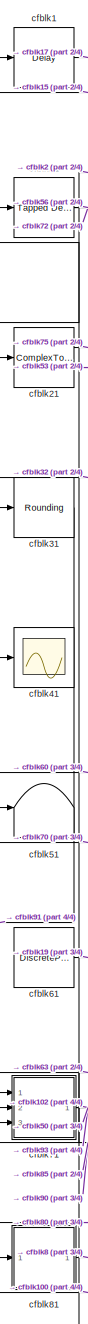
[diagram: root canvas - part 1/4, left side, full height]
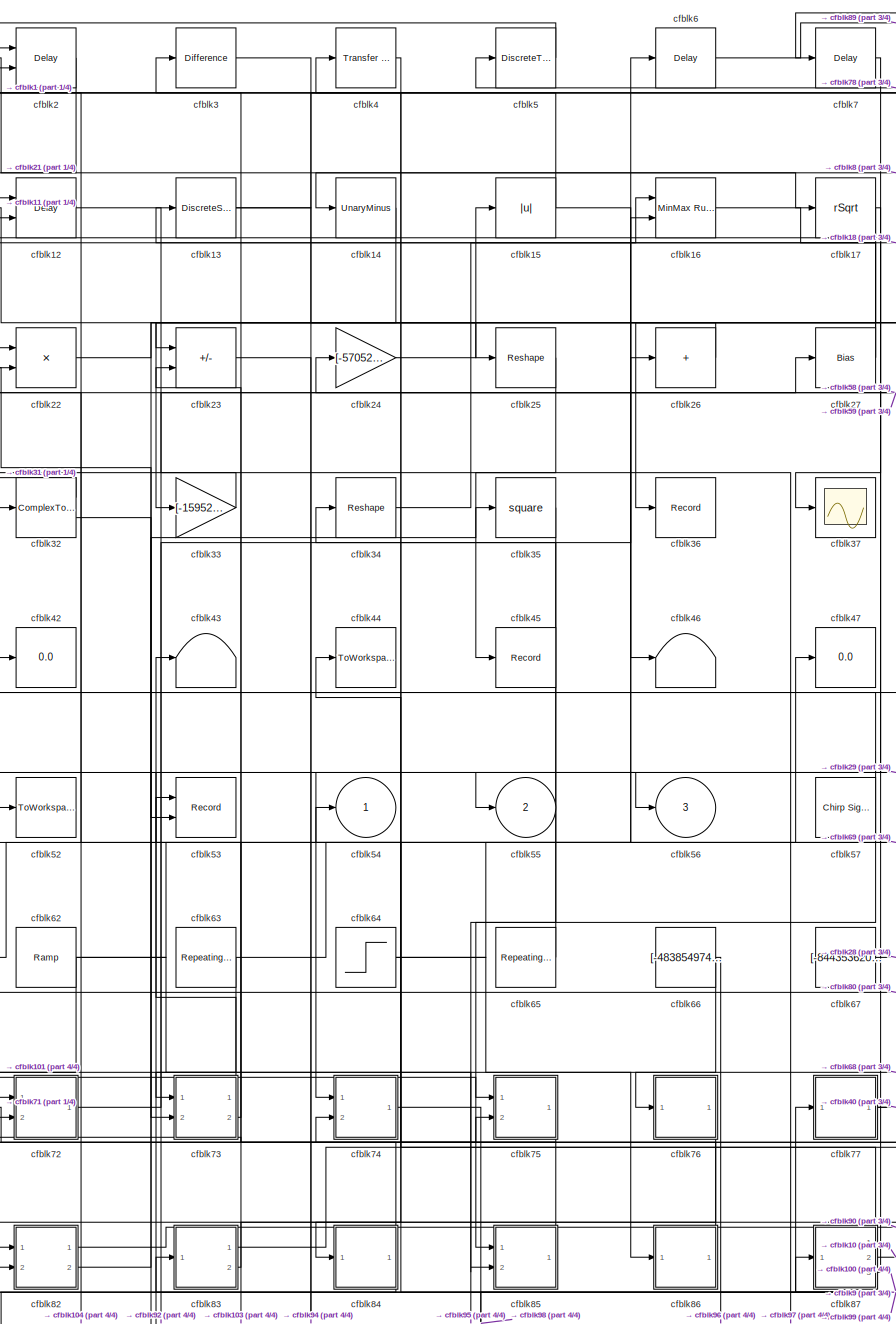
[diagram: root canvas - part 2/4, center side, full height]
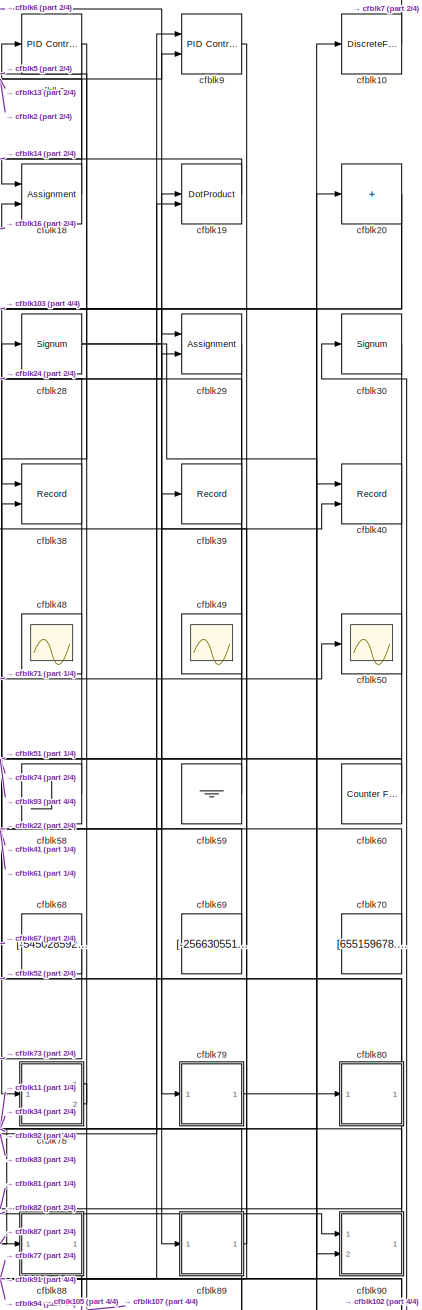
[diagram: root canvas - part 3/4, right side, full height]
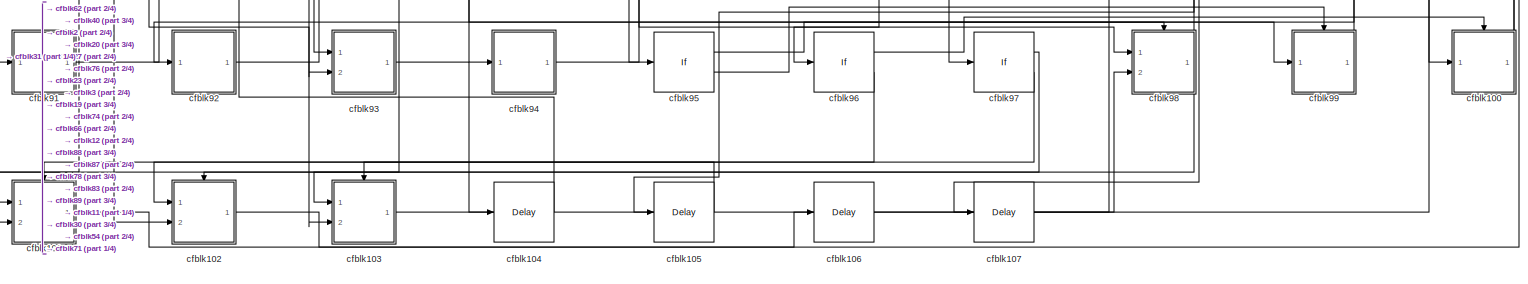
[diagram: root canvas - part 4/4, full width, bottom band]
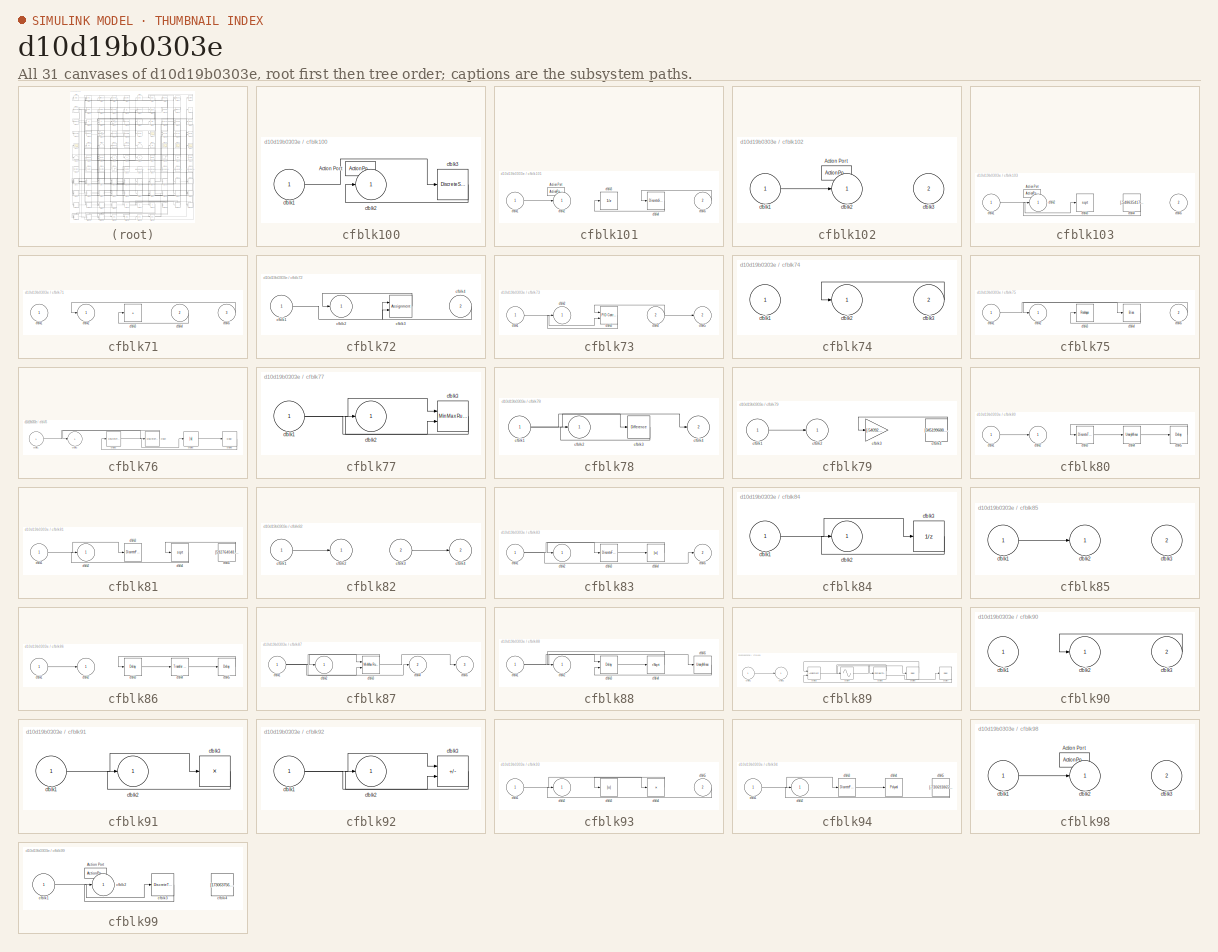
[diagram: thumbnail index - all 31 canvases of the model, root first then tree order]
MODEL slx_d10d19b0303e
KIND model
CONFIG AbsTol = auto
CONFIG EnableMultiTasking = off
CONFIG FixedStep = auto
CONFIG MaxStep = auto
CONFIG MinStep = auto
CONFIG RelTol = 1e-3
CONFIG SampleTimeConstraint = Unconstrained
CONFIG SolverName = VariableStepAuto
CONFIG StartTime = 0.0
CONFIG StopTime = 10.0
BLOCK [Delay] cfblk1
  InputPortMap = u0
  Ports = [1, 1]
  SampleTime = 1
BLOCK [DiscreteFilter] cfblk10
  InputPortMap = u0
  Ports = [1, 1]
  SampleTime = 1
BLOCK [SubSystem] cfblk100
  Ports = [1, 1, 0, 0, 0, 0, 0, 1]
  RequestExecContextInheritance = off
  TreatAsAtomicUnit = on
BLOCK [ActionPort] cfblk100/Action Port
  ActionPortLabel = if(u1 >= 0)
BLOCK [Inport] cfblk100/cfblk1
BLOCK [Outport] cfblk100/cfblk2
BLOCK [DiscreteStateSpace] cfblk100/cfblk3
  SampleTime = -1
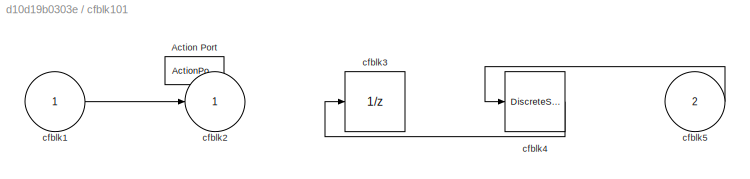
BLOCK [SubSystem] cfblk101
  Ports = [2, 1, 0, 0, 0, 0, 0, 1]
  RequestExecContextInheritance = off
  TreatAsAtomicUnit = on
BLOCK [ActionPort] cfblk101/Action Port
  ActionPortLabel = else
BLOCK [Inport] cfblk101/cfblk1
BLOCK [Outport] cfblk101/cfblk2
BLOCK [UnitDelay] cfblk101/cfblk3
  HasFrameUpgradeWarning = on
  SampleTime = -1
BLOCK [DiscreteStateSpace] cfblk101/cfblk4
  SampleTime = -1
BLOCK [Inport] cfblk101/cfblk5
  Port = 2
BLOCK [SubSystem] cfblk102
  Ports = [2, 1, 0, 0, 0, 0, 0, 1]
  RequestExecContextInheritance = off
  TreatAsAtomicUnit = on
BLOCK [ActionPort] cfblk102/Action Port
  ActionPortLabel = if(u1 >= 0)
BLOCK [Inport] cfblk102/cfblk1
BLOCK [Outport] cfblk102/cfblk2
BLOCK [Inport] cfblk102/cfblk3
  Port = 2
BLOCK [SubSystem] cfblk103
  Ports = [2, 1, 0, 0, 0, 0, 0, 1]
  RequestExecContextInheritance = off
  TreatAsAtomicUnit = on
BLOCK [ActionPort] cfblk103/Action Port
  ActionPortLabel = else
BLOCK [Inport] cfblk103/cfblk1
BLOCK [Outport] cfblk103/cfblk2
BLOCK [Sqrt] cfblk103/cfblk3
BLOCK [Constant] cfblk103/cfblk4
  SampleTime = 1
  Value = [-548635417.540309]
BLOCK [Inport] cfblk103/cfblk5
  Port = 2
BLOCK [Delay] cfblk104
  InputPortMap = u0
  Ports = [1, 1]
  SampleTime = 1
BLOCK [Delay] cfblk105
  InputPortMap = u0
  Ports = [1, 1]
  SampleTime = 1
BLOCK [Delay] cfblk106
  InputPortMap = u0
  Ports = [1, 1]
  SampleTime = 1
BLOCK [Delay] cfblk107
  InputPortMap = u0
  Ports = [1, 1]
  SampleTime = 1
BLOCK [Reference] cfblk11  REF=simulink/Discrete/Tapped Delay
  Ports = [1, 1]
  SourceBlock = simulink/Discrete/Tapped Delay
  SourceProductBaseCode = SL
  SourceType = Tapped Delay Line
BLOCK [Delay] cfblk12
  InputPortMap = u0,e6
  Ports = [2, 1]
  SampleTime = 1
  ShowEnablePort = on
BLOCK [DiscreteStateSpace] cfblk13
BLOCK [UnaryMinus] cfblk14
BLOCK [Abs] cfblk15
  SaturateOnIntegerOverflow = off
BLOCK [Reference] cfblk16  REF=simulink/Math
Operations/MinMax
Running
Resettable
  Ports = [2, 1]
  SourceBlock = simulink/Math\nOperations/MinMax\nRunning\nResettable
  SourceProductBaseCode = SL
  SourceType = MinMax Running Resettable
BLOCK [Sqrt] cfblk17
  AlgorithmType = Newton-Raphson
  Operator = rSqrt
BLOCK [Assignment] cfblk18
  DiagnosticForDimensions = Warning
  IndexOptions = Index vector (dialog)
  Indices = 1
  OutputSizes = 1
  Ports = [2, 1]
BLOCK [DotProduct] cfblk19
  OutDataTypeStr = Inherit: Inherit via internal rule
BLOCK [Delay] cfblk2
  DelayLengthSource = Input port
  InputPortMap = u0,p1
  Ports = [2, 1]
  SampleTime = 1
BLOCK [Sum] cfblk20
  IconShape = rectangular
  Inputs = +
  Ports = [1, 1]
BLOCK [ComplexToMagnitudeAngle] cfblk21
  Ports = [1, 2]
BLOCK [Product] cfblk22
  Inputs = **
  Ports = [2, 1]
BLOCK [Sum] cfblk23
  IconShape = rectangular
  Inputs = -+
  Ports = [2, 1]
BLOCK [Gain] cfblk24
  Gain = [-570527661.174299]
BLOCK [Reshape] cfblk25
  Ports = [1, 1]
BLOCK [Sum] cfblk26
  IconShape = rectangular
  Inputs = +
  Ports = [1, 1]
BLOCK [Bias] cfblk27
  Bias = [639925905.355935]
  SaturateOnIntegerOverflow = off
BLOCK [Signum] cfblk28
BLOCK [Assignment] cfblk29
  DiagnosticForDimensions = Warning
  IndexOptions = Index vector (dialog)
  Indices = 1
  OutputSizes = 1
  Ports = [2, 1]
BLOCK [Reference] cfblk3  REF=simulink/Discrete/Difference
  Ports = [1, 1]
  SourceBlock = simulink/Discrete/Difference
  SourceProductBaseCode = SL
  SourceType = Difference
BLOCK [Signum] cfblk30
BLOCK [Rounding] cfblk31
BLOCK [ComplexToRealImag] cfblk32
  Ports = [1, 2]
BLOCK [Gain] cfblk33
  Gain = [-159525639.619426]
BLOCK [Reshape] cfblk34
  Ports = [1, 1]
BLOCK [Math] cfblk35
  Operator = square
  Ports = [1, 1]
BLOCK [Record] cfblk36
  FileSettingsInternal = {"entries":[{"content":{"excelSettings":{"content":{},"type":"Streamout.ExcelSettings"}},"type":"Streamout.FileSettingStorage","uuid":"c781cdf7-8340-408b-8422-f8d69e560093"}],"packageUris":["http://schema.mathworks.com/mf0/streamout_blocks/R2020a"],"version":"1.0"}
  Ports = [1]
  SignalsInternal = {"entries":[{"content":{"signals":[{"content":{"blockPath":["sampleModel281/cfblk36"],"channel":[],"dimensions":[1],"domain":"sampleModel281/cfblk36","lineColor":"#139fff","plots":[1],"port":1,"sid":[""],"signalID":11991,"signalName":"cfblk17"},"type":"RecordBlkView.Signal","uuid":"6f29a3cb-49ad-40a3-998c-ead64aca4211"}]},"type":"RecordBlkView.InputSignals","uuid":"da20b184-1727-445b-b2e6-5f57a622...<+98ch>
  VisualizationBindings = {"sparklinesplugin":{"info":[{"bindingParametersList":[],"subplotID":1}]}}
BLOCK [Scope] cfblk37
  Floating = off
  NumInputPorts = 1
  Ports = [1]
BLOCK [Record] cfblk38
  CompatibilityTag = XY
  FileSettingsInternal = {"entries":[{"content":{"excelSettings":{"content":{},"type":"Streamout.ExcelSettings"}},"type":"Streamout.FileSettingStorage","uuid":"4188593c-7763-4c79-a663-ea53f92952dd"}],"packageUris":["http://schema.mathworks.com/mf0/streamout_blocks/R2020a"],"version":"1.0"}
  Layout = [1 1]
  Ports = [2]
  SignalsInternal = {"entries":[{"content":{"signals":[{"content":{"blockPath":["sampleModel281/cfblk38"],"channel":[],"dimensions":[1],"domain":"sampleModel281/cfblk38","lineColor":"#a2142f","plots":[1],"port":1,"sid":[""],"signalID":11963,"signalName":"cfblk8"},"type":"RecordBlkView.Signal","uuid":"ce15c6e9-b25a-4a9d-a87d-16814ede9b87"},{"content":{"blockPath":["sampleModel281/cfblk38"],"channel":[],"dimensions":[1...<+384ch>
  VisualizationBindings = {"xyplotplugin":{"info":[{"series":[{"bindingParametersList":[{"parameter":"X-Axis","signalID":11963,"signalName":"cfblk8"},{"parameter":"Y-Axis","signalID":11967,"signalName":"cfblk80"}],"seriesID":6983}],"subplotID":1}]}}
BLOCK [Record] cfblk39
  FileSettingsInternal = {"entries":[{"content":{"excelSettings":{"content":{},"type":"Streamout.ExcelSettings"}},"type":"Streamout.FileSettingStorage","uuid":"219db649-d65c-4cc3-812d-aced4d92e676"}],"packageUris":["http://schema.mathworks.com/mf0/streamout_blocks/R2020a"],"version":"1.0"}
  Ports = [1]
  SignalsInternal = {"entries":[{"content":{"signals":[{"content":{"blockPath":["sampleModel281/cfblk39"],"channel":[],"dimensions":[1],"domain":"sampleModel281/cfblk39","lineColor":"#edb120","plots":[1],"port":1,"sid":[""],"signalID":11971,"signalName":"cfblk89"},"type":"RecordBlkView.Signal","uuid":"55bd96a2-e860-4ecd-af7d-bb83553d0170"}]},"type":"RecordBlkView.InputSignals","uuid":"8836e843-c683-4200-9918-d583b116...<+98ch>
  VisualizationBindings = {"sparklinesplugin":{"info":[{"bindingParametersList":[],"subplotID":1}]}}
BLOCK [Reference] cfblk4  REF=simulink/Discrete/Transfer Fcn
Lead or Lag
  Ports = [1, 1]
  SourceBlock = simulink/Discrete/Transfer Fcn\nLead or Lag
  SourceProductBaseCode = SL
  SourceType = Lead or Lag Compensator
BLOCK [Record] cfblk40
  CompatibilityTag = XY
  FileSettingsInternal = {"entries":[{"content":{"excelSettings":{"content":{},"type":"Streamout.ExcelSettings"}},"type":"Streamout.FileSettingStorage","uuid":"7e2a92c3-6fd6-43f3-bb8d-8e942b6776ba"}],"packageUris":["http://schema.mathworks.com/mf0/streamout_blocks/R2020a"],"version":"1.0"}
  Layout = [1 1]
  Ports = [2]
  SignalsInternal = {"entries":[{"content":{"signals":[{"content":{"blockPath":["sampleModel281/cfblk40"],"channel":[],"dimensions":[1],"domain":"sampleModel281/cfblk40","lineColor":"#a2142f","plots":[1],"port":1,"sid":[""],"signalID":11975,"signalName":"cfblk91"},"type":"RecordBlkView.Signal","uuid":"8dd85c33-c0e1-47fe-82f9-e8373d55203a"},{"content":{"blockPath":["sampleModel281/cfblk40"],"channel":[],"dimensions":[...<+385ch>
  VisualizationBindings = {"xyplotplugin":{"info":[{"series":[{"bindingParametersList":[{"parameter":"X-Axis","signalID":11975,"signalName":"cfblk91"},{"parameter":"Y-Axis","signalID":11979,"signalName":"cfblk77"}],"seriesID":59243}],"subplotID":1}]}}
BLOCK [Scope] cfblk41
  Floating = off
  NumInputPorts = 1
  Ports = [1]
BLOCK [Display] cfblk42
  Decimation = 1
  Ports = [1]
BLOCK [Terminator] cfblk43
BLOCK [ToWorkspace] cfblk44
  FixptAsFi = on
  MaxDataPoints = inf
  Ports = [1]
  SampleTime = -1
  SaveFormat = Timeseries
  VariableName = hrtlfxt
BLOCK [Record] cfblk45
  FileSettingsInternal = {"entries":[{"content":{"excelSettings":{"content":{},"type":"Streamout.ExcelSettings"}},"type":"Streamout.FileSettingStorage","uuid":"80b63704-7d10-486e-b387-18bfb6728c18"}],"packageUris":["http://schema.mathworks.com/mf0/streamout_blocks/R2020a"],"version":"1.0"}
  Ports = [1]
  SignalsInternal = {"entries":[{"content":{"signals":[{"content":{"blockPath":["sampleModel281/cfblk45"],"channel":[],"dimensions":[1],"domain":"sampleModel281/cfblk45","lineColor":"#ff6929","plots":[1],"port":1,"sid":[""],"signalID":11995,"signalName":"cfblk25"},"type":"RecordBlkView.Signal","uuid":"f8ece178-e086-4969-b784-ed276f630d12"}]},"type":"RecordBlkView.InputSignals","uuid":"7be7d227-b162-4c4c-ad33-f79b945d...<+98ch>
  VisualizationBindings = {"sparklinesplugin":{"info":[{"bindingParametersList":[],"subplotID":1}]}}
BLOCK [Terminator] cfblk46
BLOCK [Display] cfblk47
  Decimation = 1
  Ports = [1]
BLOCK [Scope] cfblk48
  Floating = on
  NumInputPorts = 1
  Ports = []
BLOCK [Scope] cfblk49
  Floating = on
  NumInputPorts = 1
  Ports = []
BLOCK [DiscreteTransferFcn] cfblk5
  InputPortMap = u0
  Ports = [1, 1]
  SampleTime = 1
BLOCK [Scope] cfblk50
  Floating = off
  NumInputPorts = 1
  Ports = [1]
BLOCK [Terminator] cfblk51
BLOCK [ToWorkspace] cfblk52
  FixptAsFi = on
  MaxDataPoints = inf
  Ports = [1]
  SampleTime = -1
  SaveFormat = Timeseries
  VariableName = qgnmijv
BLOCK [Record] cfblk53
  CompatibilityTag = XY
  FileSettingsInternal = {"entries":[{"content":{"excelSettings":{"content":{},"type":"Streamout.ExcelSettings"}},"type":"Streamout.FileSettingStorage","uuid":"979e6c69-9637-4301-9808-cdf47ec4f26d"}],"packageUris":["http://schema.mathworks.com/mf0/streamout_blocks/R2020a"],"version":"1.0"}
  Layout = [1 1]
  Ports = [2]
  SignalsInternal = {"entries":[{"content":{"signals":[{"content":{"blockPath":["sampleModel281/cfblk53"],"channel":[],"dimensions":[1],"domain":"sampleModel281/cfblk53","lineColor":"#a2142f","plots":[1],"port":1,"sid":[""],"signalID":11983,"signalName":"cfblk86"},"type":"RecordBlkView.Signal","uuid":"a6416475-d9fb-464a-9363-37660f0059bb"},{"content":{"blockPath":["sampleModel281/cfblk53"],"channel":[],"dimensions":[...<+387ch>
  VisualizationBindings = {"xyplotplugin":{"info":[{"series":[{"bindingParametersList":[{"parameter":"X-Axis","signalID":11983,"signalName":"cfblk86"},{"parameter":"Y-Axis","signalID":11987,"signalName":"cfblk21:2"}],"seriesID":45068}],"subplotID":1}]}}
BLOCK [Outport] cfblk54
BLOCK [Outport] cfblk55
  Port = 2
BLOCK [Outport] cfblk56
  Port = 3
BLOCK [Reference] cfblk57  REF=simulink/Sources/Chirp Signal
  Ports = [0, 1]
  SourceBlock = simulink/Sources/Chirp Signal
  SourceProductBaseCode = SL
  SourceType = chirp
BLOCK [Step] cfblk58
  After = [840646586.279118]
  Before = [-159427746.311310]
  SampleTime = 0
  Time = [42.000000]
BLOCK [Ground] cfblk59
BLOCK [Delay] cfblk6
  InputPortMap = u0
  Ports = [1, 1]
  SampleTime = 1
BLOCK [Reference] cfblk60  REF=simulink/Sources/Counter
Free-Running
  Ports = [0, 1]
  SourceBlock = simulink/Sources/Counter\nFree-Running
  SourceProductBaseCode = SL
  SourceType = Counter Free-Running
BLOCK [DiscretePulseGenerator] cfblk61
  Amplitude = [-599555559.374941]
  Period = [82024512.109082]
  PhaseDelay = [9.000000]
  Ports = [0, 1]
  PulseType = Time based
  PulseWidth = 5
BLOCK [Reference] cfblk62  REF=simulink/Sources/Ramp
  Ports = [0, 1]
  SourceBlock = simulink/Sources/Ramp
  SourceProductBaseCode = SL
  SourceType = Ramp
BLOCK [Reference] cfblk63  REF=simulink/Sources/Repeating
Sequence
Interpolated
  Ports = [0, 1]
  SourceBlock = simulink/Sources/Repeating\nSequence\nInterpolated
  SourceProductBaseCode = SL
  SourceType = Repeating Sequence Interpolated
BLOCK [Step] cfblk64
  After = [306635443.375634]
  Before = [-566169938.934532]
  SampleTime = 0
  Time = [34.000000]
BLOCK [Reference] cfblk65  REF=simulink/Sources/Repeating
Sequence
Stair
  Ports = [0, 1]
  SourceBlock = simulink/Sources/Repeating\nSequence\nStair
  SourceProductBaseCode = SL
  SourceType = Repeating Sequence Stair
BLOCK [Constant] cfblk66
  SampleTime = 1
  Value = [-483854974.135673]
BLOCK [Constant] cfblk67
  SampleTime = 1
  Value = [-844353620.196020]
BLOCK [Constant] cfblk68
  SampleTime = 1
  Value = [-545028592.398098]
BLOCK [Constant] cfblk69
  SampleTime = 1
  Value = [-256630551.572373]
BLOCK [Delay] cfblk7
  InputPortMap = u0
  Ports = [1, 1]
  SampleTime = 1
BLOCK [Constant] cfblk70
  SampleTime = 1
  Value = [655159678.286842]
BLOCK [SubSystem] cfblk71
  Ports = [3, 1]
  RequestExecContextInheritance = off
BLOCK [Inport] cfblk71/cfblk1
BLOCK [Outport] cfblk71/cfblk2
BLOCK [Sum] cfblk71/cfblk3
  IconShape = rectangular
  Inputs = +
  Ports = [1, 1]
BLOCK [Inport] cfblk71/cfblk4
  Port = 2
BLOCK [Inport] cfblk71/cfblk5
  Port = 3
BLOCK [SubSystem] cfblk72
  Ports = [2, 1]
  RequestExecContextInheritance = off
BLOCK [Inport] cfblk72/cfblk1
BLOCK [Outport] cfblk72/cfblk2
BLOCK [Assignment] cfblk72/cfblk3
  DiagnosticForDimensions = Warning
  IndexOptions = Index vector (dialog)
  Indices = 1
  OutputSizes = 1
  Ports = [2, 1]
BLOCK [Inport] cfblk72/cfblk4
  Port = 2
BLOCK [SubSystem] cfblk73
  Ports = [2, 2]
  RequestExecContextInheritance = off
BLOCK [Inport] cfblk73/cfblk1
BLOCK [Outport] cfblk73/cfblk2
BLOCK [Reference] cfblk73/cfblk3  REF=slpidlib/PID Controller (2DOF)
  Ports = [2, 1]
  SourceBlock = slpidlib/PID Controller (2DOF)
  SourceProductBaseCode = SL
  SourceType = PID 2dof
BLOCK [Inport] cfblk73/cfblk4
  Port = 2
BLOCK [Outport] cfblk73/cfblk5
  Port = 2
BLOCK [SubSystem] cfblk74
  Ports = [2, 1]
  RequestExecContextInheritance = off
BLOCK [Inport] cfblk74/cfblk1
BLOCK [Outport] cfblk74/cfblk2
BLOCK [Inport] cfblk74/cfblk3
  Port = 2
BLOCK [SubSystem] cfblk75
  Ports = [2, 1]
  RequestExecContextInheritance = off
BLOCK [Inport] cfblk75/cfblk1
BLOCK [Outport] cfblk75/cfblk2
BLOCK [Reshape] cfblk75/cfblk3
  Ports = [1, 1]
BLOCK [Bias] cfblk75/cfblk4
  Bias = [-374464078.550922]
  SaturateOnIntegerOverflow = off
BLOCK [Inport] cfblk75/cfblk5
  Port = 2
BLOCK [SubSystem] cfblk76
  Ports = [1, 1]
  RequestExecContextInheritance = off
BLOCK [Inport] cfblk76/cfblk1
BLOCK [Outport] cfblk76/cfblk2
BLOCK [DiscreteTransferFcn] cfblk76/cfblk3
  InputPortMap = u0
  Ports = [1, 1]
  SampleTime = 1
BLOCK [DiscreteFilter] cfblk76/cfblk4
  InputPortMap = u0
  Ports = [1, 1]
  SampleTime = 1
BLOCK [Abs] cfblk76/cfblk5
  SaturateOnIntegerOverflow = off
BLOCK [Delay] cfblk76/cfblk6
  InputPortMap = u0
  Ports = [1, 1]
  SampleTime = 1
BLOCK [SubSystem] cfblk77
  Ports = [1, 1]
  RequestExecContextInheritance = off
BLOCK [Inport] cfblk77/cfblk1
BLOCK [Outport] cfblk77/cfblk2
BLOCK [Reference] cfblk77/cfblk3  REF=simulink/Math
Operations/MinMax
Running
Resettable
  Ports = [2, 1]
  SourceBlock = simulink/Math\nOperations/MinMax\nRunning\nResettable
  SourceProductBaseCode = SL
  SourceType = MinMax Running Resettable
BLOCK [SubSystem] cfblk78
  Ports = [1, 2]
  RequestExecContextInheritance = off
BLOCK [Inport] cfblk78/cfblk1
BLOCK [Outport] cfblk78/cfblk2
BLOCK [Reference] cfblk78/cfblk3  REF=simulink/Discrete/Difference
  Ports = [1, 1]
  SourceBlock = simulink/Discrete/Difference
  SourceProductBaseCode = SL
  SourceType = Difference
BLOCK [Outport] cfblk78/cfblk4
  Port = 2
BLOCK [SubSystem] cfblk79
  Ports = [1, 1]
  RequestExecContextInheritance = off
BLOCK [Inport] cfblk79/cfblk1
BLOCK [Outport] cfblk79/cfblk2
BLOCK [Gain] cfblk79/cfblk3
  Gain = [-540929469.649708]
BLOCK [Constant] cfblk79/cfblk4
  SampleTime = 1
  Value = [345199688.545486]
BLOCK [Reference] cfblk8  REF=slpidlib/PID Controller
  Ports = [1, 1]
  SourceBlock = slpidlib/PID Controller
  SourceProductBaseCode = SL
  SourceType = PID 1dof
BLOCK [SubSystem] cfblk80
  Ports = [1, 1]
  RequestExecContextInheritance = off
BLOCK [Inport] cfblk80/cfblk1
BLOCK [Outport] cfblk80/cfblk2
BLOCK [DiscreteTransferFcn] cfblk80/cfblk3
  InputPortMap = u0
  Ports = [1, 1]
  SampleTime = 1
BLOCK [UnaryMinus] cfblk80/cfblk4
BLOCK [Delay] cfblk80/cfblk5
  InputPortMap = u0
  Ports = [1, 1]
  SampleTime = 1
BLOCK [SubSystem] cfblk81
  Ports = [1, 1]
  RequestExecContextInheritance = off
BLOCK [Inport] cfblk81/cfblk1
BLOCK [Outport] cfblk81/cfblk2
BLOCK [DiscreteFilter] cfblk81/cfblk3
  InputPortMap = u0
  Ports = [1, 1]
  SampleTime = 1
BLOCK [Sqrt] cfblk81/cfblk4
BLOCK [Constant] cfblk81/cfblk5
  SampleTime = 1
  Value = [592764048.259146]
BLOCK [SubSystem] cfblk82
  Ports = [2, 2]
  RequestExecContextInheritance = off
BLOCK [Inport] cfblk82/cfblk1
BLOCK [Outport] cfblk82/cfblk2
BLOCK [Inport] cfblk82/cfblk3
  Port = 2
BLOCK [Outport] cfblk82/cfblk4
  Port = 2
BLOCK [SubSystem] cfblk83
  Ports = [1, 2]
  RequestExecContextInheritance = off
BLOCK [Inport] cfblk83/cfblk1
BLOCK [Outport] cfblk83/cfblk2
BLOCK [DiscreteFir] cfblk83/cfblk3
  InputPortMap = u0
  OutputPortMap = o0
  Ports = [1, 1]
  SampleTime = 1
BLOCK [Abs] cfblk83/cfblk4
  SaturateOnIntegerOverflow = off
BLOCK [Outport] cfblk83/cfblk5
  Port = 2
BLOCK [SubSystem] cfblk84
  Ports = [1, 1]
  RequestExecContextInheritance = off
BLOCK [Inport] cfblk84/cfblk1
BLOCK [Outport] cfblk84/cfblk2
BLOCK [UnitDelay] cfblk84/cfblk3
  HasFrameUpgradeWarning = on
BLOCK [SubSystem] cfblk85
  Ports = [2, 1]
  RequestExecContextInheritance = off
BLOCK [Inport] cfblk85/cfblk1
BLOCK [Outport] cfblk85/cfblk2
BLOCK [Inport] cfblk85/cfblk3
  Port = 2
BLOCK [SubSystem] cfblk86
  Ports = [1, 1]
  RequestExecContextInheritance = off
BLOCK [Inport] cfblk86/cfblk1
BLOCK [Outport] cfblk86/cfblk2
BLOCK [Delay] cfblk86/cfblk3
  InputPortMap = u0
  Ports = [1, 1]
  SampleTime = 1
BLOCK [Reference] cfblk86/cfblk4  REF=simulink/Discrete/Transfer Fcn
First Order
  Ports = [1, 1]
  SourceBlock = simulink/Discrete/Transfer Fcn\nFirst Order
  SourceProductBaseCode = SL
  SourceType = First Order Transfer Fcn
BLOCK [Delay] cfblk86/cfblk5
  InputPortMap = u0
  Ports = [1, 1]
  SampleTime = 1
BLOCK [SubSystem] cfblk87
  Ports = [1, 3]
  RequestExecContextInheritance = off
BLOCK [Inport] cfblk87/cfblk1
BLOCK [Outport] cfblk87/cfblk2
BLOCK [Reference] cfblk87/cfblk3  REF=simulink/Math
Operations/MinMax
Running
Resettable
  Ports = [2, 1]
  SourceBlock = simulink/Math\nOperations/MinMax\nRunning\nResettable
  SourceProductBaseCode = SL
  SourceType = MinMax Running Resettable
BLOCK [Outport] cfblk87/cfblk4
  Port = 2
BLOCK [Outport] cfblk87/cfblk5
  Port = 3
BLOCK [SubSystem] cfblk88
  Ports = [1, 1]
  RequestExecContextInheritance = off
BLOCK [Inport] cfblk88/cfblk1
BLOCK [Outport] cfblk88/cfblk2
BLOCK [Delay] cfblk88/cfblk3
  DelayLengthSource = Input port
  InputPortMap = u0,p1
  Ports = [2, 1]
  SampleTime = 1
BLOCK [Sqrt] cfblk88/cfblk4
  AlgorithmType = Newton-Raphson
  Operator = rSqrt
BLOCK [UnaryMinus] cfblk88/cfblk5
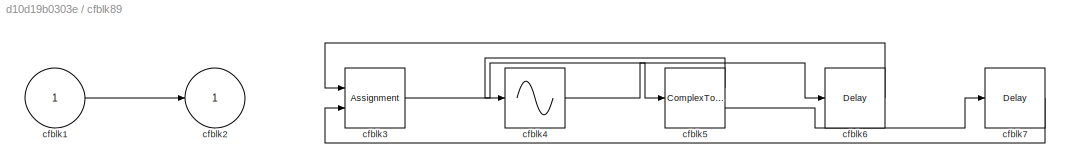
BLOCK [SubSystem] cfblk89
  Ports = [1, 1]
  RequestExecContextInheritance = off
BLOCK [Inport] cfblk89/cfblk1
BLOCK [Outport] cfblk89/cfblk2
BLOCK [Assignment] cfblk89/cfblk3
  DiagnosticForDimensions = Warning
  IndexOptions = Index vector (dialog)
  Indices = 1
  OutputSizes = 1
  Ports = [2, 1]
BLOCK [Sin] cfblk89/cfblk4
  Ports = [1, 1]
  SampleTime = 0
  TimeSource = Use external signal
BLOCK [ComplexToRealImag] cfblk89/cfblk5
  Ports = [1, 2]
BLOCK [Delay] cfblk89/cfblk6
  InputPortMap = u0
  Ports = [1, 1]
  SampleTime = 1
BLOCK [Delay] cfblk89/cfblk7
  InputPortMap = u0
  Ports = [1, 1]
  SampleTime = 1
BLOCK [Reference] cfblk9  REF=slpidlib/PID Controller (2DOF)
  Ports = [2, 1]
  SourceBlock = slpidlib/PID Controller (2DOF)
  SourceProductBaseCode = SL
  SourceType = PID 2dof
BLOCK [SubSystem] cfblk90
  Ports = [2, 1]
  RequestExecContextInheritance = off
BLOCK [Inport] cfblk90/cfblk1
BLOCK [Outport] cfblk90/cfblk2
BLOCK [Inport] cfblk90/cfblk3
  Port = 2
BLOCK [SubSystem] cfblk91
  Ports = [1, 1]
  RequestExecContextInheritance = off
BLOCK [Inport] cfblk91/cfblk1
BLOCK [Outport] cfblk91/cfblk2
BLOCK [Product] cfblk91/cfblk3
  Inputs = *
  Ports = [1, 1]
BLOCK [SubSystem] cfblk92
  Ports = [1, 1]
  RequestExecContextInheritance = off
BLOCK [Inport] cfblk92/cfblk1
BLOCK [Outport] cfblk92/cfblk2
BLOCK [Sum] cfblk92/cfblk3
  IconShape = rectangular
  Inputs = -+
  Ports = [2, 1]
BLOCK [SubSystem] cfblk93
  Ports = [2, 1]
  RequestExecContextInheritance = off
BLOCK [Inport] cfblk93/cfblk1
BLOCK [Outport] cfblk93/cfblk2
BLOCK [Abs] cfblk93/cfblk3
  SaturateOnIntegerOverflow = off
BLOCK [Product] cfblk93/cfblk4
  Inputs = *
  Ports = [1, 1]
BLOCK [Inport] cfblk93/cfblk5
  Port = 2
BLOCK [SubSystem] cfblk94
  Ports = [1, 1]
  RequestExecContextInheritance = off
BLOCK [Inport] cfblk94/cfblk1
BLOCK [Outport] cfblk94/cfblk2
BLOCK [DiscreteFilter] cfblk94/cfblk3
  InputPortMap = u0
  Ports = [1, 1]
  SampleTime = 1
BLOCK [Polyval] cfblk94/cfblk4
  Coefs = [ +2.081618890e-019, -1.441693666e-014, +4.719686976e-010, -8.536869453e-006, +1.621573104e-001, -8.087801117e+001 ]
BLOCK [Constant] cfblk94/cfblk5
  SampleTime = 1
  Value = [-730693865.910529]
BLOCK [If] cfblk95
  IfExpression = u1 >= 0
  Ports = [1, 2]
  SampleTime = 1
BLOCK [If] cfblk96
  IfExpression = u1 >= 0
  Ports = [1, 2]
  SampleTime = 1
BLOCK [If] cfblk97
  IfExpression = u1 >= 0
  Ports = [1, 2]
  SampleTime = 1
BLOCK [SubSystem] cfblk98
  Ports = [2, 1, 0, 0, 0, 0, 0, 1]
  RequestExecContextInheritance = off
  TreatAsAtomicUnit = on
BLOCK [ActionPort] cfblk98/Action Port
  ActionPortLabel = if(u1 >= 0)
BLOCK [Inport] cfblk98/cfblk1
BLOCK [Outport] cfblk98/cfblk2
BLOCK [Inport] cfblk98/cfblk3
  Port = 2
BLOCK [SubSystem] cfblk99
  Ports = [1, 1, 0, 0, 0, 0, 0, 1]
  RequestExecContextInheritance = off
  TreatAsAtomicUnit = on
BLOCK [ActionPort] cfblk99/Action Port
  ActionPortLabel = else
BLOCK [Inport] cfblk99/cfblk1
BLOCK [Outport] cfblk99/cfblk2
BLOCK [DiscreteTransferFcn] cfblk99/cfblk3
  InputPortMap = u0
  Ports = [1, 1]
BLOCK [Constant] cfblk99/cfblk4
  SampleTime = 1
  Value = [173063756.286733]
LINE cfblk100/cfblk1:1 -> cfblk100/cfblk3:1
LINE cfblk100/cfblk3:1 -> cfblk100/cfblk2:1
NET cfblk100:1 -> cfblk54:1, cfblk71:2
LINE cfblk101/cfblk1:1 -> cfblk101/cfblk2:1
LINE cfblk101/cfblk4:1 -> cfblk101/cfblk3:1
LINE cfblk101/cfblk5:1 -> cfblk101/cfblk4:1
LINE cfblk101:1 -> cfblk106:1
LINE cfblk102/cfblk1:1 -> cfblk102/cfblk2:1
LINE cfblk102:1 -> cfblk30:1
LINE cfblk103/cfblk1:1 -> cfblk103/cfblk3:1
LINE cfblk103/cfblk4:1 -> cfblk103/cfblk2:1
LINE cfblk103:1 -> cfblk88:1
LINE cfblk104:1 -> cfblk2:2
LINE cfblk105:1 -> cfblk102:1
LINE cfblk106:1 -> cfblk98:2
LINE cfblk107:1 -> cfblk20:1
LINE cfblk10:1 -> cfblk7:1
NET cfblk11:1 -> cfblk100:1, cfblk56:1, cfblk72:2
LINE cfblk12:1 -> cfblk97:1
NET cfblk13:1 -> cfblk29:1, cfblk9:2
LINE cfblk14:1 -> cfblk33:1
NET cfblk15:1 -> cfblk1:1, cfblk46:1
LINE cfblk16:1 -> cfblk18:2
NET cfblk17:1 -> cfblk36:1, cfblk37:1
LINE cfblk18:1 -> cfblk2:1
LINE cfblk19:1 -> cfblk18:1
LINE cfblk1:1 -> cfblk17:1
NET cfblk20:1 -> cfblk103:2, cfblk78:1
LINE cfblk21:1 -> cfblk75:1
LINE cfblk21:2 -> cfblk53:2
LINE cfblk22:1 -> cfblk25:1
LINE cfblk23:1 -> cfblk94:1
LINE cfblk24:1 -> cfblk15:1
LINE cfblk25:1 -> cfblk45:1
LINE cfblk26:1 -> cfblk23:1
NET cfblk27:1 -> cfblk12:2, cfblk3:1
NET cfblk28:1 -> cfblk79:1, cfblk90:2
LINE cfblk29:1 -> cfblk74:1
LINE cfblk2:1 -> cfblk21:1
LINE cfblk30:1 -> cfblk93:1
LINE cfblk31:1 -> cfblk91:1
LINE cfblk32:1 -> cfblk31:1
LINE cfblk32:2 -> cfblk73:2
LINE cfblk33:1 -> cfblk32:1
LINE cfblk34:1 -> cfblk16:1
LINE cfblk35:1 -> cfblk85:1
LINE cfblk3:1 -> cfblk99:1
LINE cfblk4:1 -> cfblk84:1
NET cfblk57:1 -> cfblk42:1, cfblk85:2
LINE cfblk58:1 -> cfblk24:1
LINE cfblk59:1 -> cfblk22:2
LINE cfblk5:1 -> cfblk82:1
LINE cfblk60:1 -> cfblk51:1
LINE cfblk61:1 -> cfblk19:1
NET cfblk62:1 -> cfblk101:1, cfblk16:2, cfblk95:1
NET cfblk63:1 -> cfblk6:1, cfblk71:3
NET cfblk64:1 -> cfblk47:1, cfblk86:1
LINE cfblk65:1 -> cfblk4:1
NET cfblk66:1 -> cfblk76:1, cfblk96:1
LINE cfblk67:1 -> cfblk28:1
LINE cfblk68:1 -> cfblk73:1
LINE cfblk69:1 -> cfblk22:1
LINE cfblk6:1 -> cfblk89:1
LINE cfblk70:1 -> cfblk41:1
LINE cfblk71/cfblk4:1 -> cfblk71/cfblk3:1
LINE cfblk71/cfblk5:1 -> cfblk71/cfblk2:1
NET cfblk71:1 -> cfblk102:2, cfblk50:1, cfblk75:2, cfblk93:2
LINE cfblk72/cfblk1:1 -> cfblk72/cfblk3:1
LINE cfblk72/cfblk3:1 -> cfblk72/cfblk2:1
LINE cfblk72/cfblk4:1 -> cfblk72/cfblk3:2
LINE cfblk72:1 -> cfblk26:1
LINE cfblk73/cfblk1:1 -> cfblk73/cfblk3:2
LINE cfblk73/cfblk3:1 -> cfblk73/cfblk2:1
NET cfblk73/cfblk4:1 -> cfblk73/cfblk3:1, cfblk73/cfblk5:1
LINE cfblk73:1 -> cfblk43:1
LINE cfblk73:2 -> cfblk23:2
LINE cfblk74/cfblk3:1 -> cfblk74/cfblk2:1
LINE cfblk74:1 -> cfblk98:1
LINE cfblk75/cfblk1:1 -> cfblk75/cfblk4:1
LINE cfblk75/cfblk4:1 -> cfblk75/cfblk3:1
LINE cfblk75/cfblk5:1 -> cfblk75/cfblk2:1
LINE cfblk75:1 -> cfblk74:2
LINE cfblk76/cfblk1:1 -> cfblk76/cfblk4:1
LINE cfblk76/cfblk3:1 -> cfblk76/cfblk5:1
LINE cfblk76/cfblk4:1 -> cfblk76/cfblk2:1
LINE cfblk76/cfblk5:1 -> cfblk76/cfblk6:1
LINE cfblk76/cfblk6:1 -> cfblk76/cfblk3:1
LINE cfblk76:1 -> cfblk103:1
NET cfblk77/cfblk1:1 -> cfblk77/cfblk3:1, cfblk77/cfblk3:2
LINE cfblk77/cfblk3:1 -> cfblk77/cfblk2:1
NET cfblk77:1 -> cfblk29:2, cfblk40:2
NET cfblk78/cfblk1:1 -> cfblk78/cfblk3:1, cfblk78/cfblk4:1
LINE cfblk78/cfblk3:1 -> cfblk78/cfblk2:1
LINE cfblk78:1 -> cfblk107:1
LINE cfblk78:2 -> cfblk5:1
LINE cfblk79/cfblk1:1 -> cfblk79/cfblk2:1
LINE cfblk79/cfblk4:1 -> cfblk79/cfblk3:1
LINE cfblk79:1 -> cfblk80:1
LINE cfblk7:1 -> cfblk55:1
LINE cfblk80/cfblk1:1 -> cfblk80/cfblk2:1
LINE cfblk80/cfblk3:1 -> cfblk80/cfblk4:1
LINE cfblk80/cfblk4:1 -> cfblk80/cfblk5:1
LINE cfblk80/cfblk5:1 -> cfblk80/cfblk3:1
NET cfblk80:1 -> cfblk38:2, cfblk52:1, cfblk81:1
LINE cfblk81/cfblk1:1 -> cfblk81/cfblk3:1
LINE cfblk81/cfblk4:1 -> cfblk81/cfblk2:1
LINE cfblk81/cfblk5:1 -> cfblk81/cfblk4:1
LINE cfblk81:1 -> cfblk8:1
LINE cfblk82/cfblk1:1 -> cfblk82/cfblk2:1
LINE cfblk82/cfblk3:1 -> cfblk82/cfblk4:1
LINE cfblk82:1 -> cfblk90:1
LINE cfblk82:2 -> cfblk35:1
NET cfblk83/cfblk1:1 -> cfblk83/cfblk3:1, cfblk83/cfblk5:1
LINE cfblk83/cfblk3:1 -> cfblk83/cfblk4:1
LINE cfblk83/cfblk4:1 -> cfblk83/cfblk2:1
LINE cfblk83:1 -> cfblk9:1
LINE cfblk83:2 -> cfblk72:1
LINE cfblk84/cfblk1:1 -> cfblk84/cfblk3:1
LINE cfblk84/cfblk3:1 -> cfblk84/cfblk2:1
NET cfblk84:1 -> cfblk13:1, cfblk82:2
LINE cfblk85/cfblk1:1 -> cfblk85/cfblk2:1
LINE cfblk85:1 -> cfblk71:1
LINE cfblk86/cfblk1:1 -> cfblk86/cfblk2:1
LINE cfblk86/cfblk3:1 -> cfblk86/cfblk4:1
LINE cfblk86/cfblk4:1 -> cfblk86/cfblk5:1
LINE cfblk86/cfblk5:1 -> cfblk86/cfblk3:1
LINE cfblk86:1 -> cfblk53:1
NET cfblk87/cfblk1:1 -> cfblk87/cfblk3:1, cfblk87/cfblk3:2, cfblk87/cfblk4:1
NET cfblk87/cfblk3:1 -> cfblk87/cfblk2:1, cfblk87/cfblk5:1
LINE cfblk87:1 -> cfblk44:1
LINE cfblk87:2 -> cfblk10:1
LINE cfblk87:3 -> cfblk12:1
NET cfblk88/cfblk1:1 -> cfblk88/cfblk3:1, cfblk88/cfblk5:1
LINE cfblk88/cfblk3:1 -> cfblk88/cfblk4:1
LINE cfblk88/cfblk4:1 -> cfblk88/cfblk2:1
LINE cfblk88/cfblk5:1 -> cfblk88/cfblk3:2
LINE cfblk88:1 -> cfblk105:1
LINE cfblk89/cfblk1:1 -> cfblk89/cfblk2:1
LINE cfblk89/cfblk3:1 -> cfblk89/cfblk5:1
LINE cfblk89/cfblk4:1 -> cfblk89/cfblk6:1
LINE cfblk89/cfblk5:1 -> cfblk89/cfblk4:1
LINE cfblk89/cfblk5:2 -> cfblk89/cfblk7:1
LINE cfblk89/cfblk6:1 -> cfblk89/cfblk3:1
LINE cfblk89/cfblk7:1 -> cfblk89/cfblk3:2
NET cfblk89:1 -> cfblk34:1, cfblk39:1, cfblk92:1
NET cfblk8:1 -> cfblk14:1, cfblk38:1
LINE cfblk90/cfblk3:1 -> cfblk90/cfblk2:1
LINE cfblk90:1 -> cfblk11:1
LINE cfblk91/cfblk1:1 -> cfblk91/cfblk3:1
LINE cfblk91/cfblk3:1 -> cfblk91/cfblk2:1
LINE cfblk91:1 -> cfblk40:1
NET cfblk92/cfblk1:1 -> cfblk92/cfblk3:1, cfblk92/cfblk3:2
LINE cfblk92/cfblk3:1 -> cfblk92/cfblk2:1
LINE cfblk92:1 -> cfblk27:1
LINE cfblk93/cfblk1:1 -> cfblk93/cfblk4:1
LINE cfblk93/cfblk4:1 -> cfblk93/cfblk3:1
LINE cfblk93/cfblk5:1 -> cfblk93/cfblk2:1
LINE cfblk93:1 -> cfblk104:1
LINE cfblk94/cfblk1:1 -> cfblk94/cfblk3:1
LINE cfblk94/cfblk3:1 -> cfblk94/cfblk4:1
LINE cfblk94/cfblk5:1 -> cfblk94/cfblk2:1
LINE cfblk94:1 -> cfblk19:2
LINE cfblk95:1 -> cfblk98:ifaction
LINE cfblk95:2 -> cfblk99:ifaction
LINE cfblk96:1 -> cfblk100:ifaction
LINE cfblk96:2 -> cfblk101:ifaction
LINE cfblk97:1 -> cfblk102:ifaction
LINE cfblk97:2 -> cfblk103:ifaction
LINE cfblk98/cfblk1:1 -> cfblk98/cfblk2:1
NET cfblk98:1 -> cfblk101:2, cfblk87:1
LINE cfblk99/cfblk1:1 -> cfblk99/cfblk3:1
LINE cfblk99/cfblk3:1 -> cfblk99/cfblk2:1
LINE cfblk99:1 -> cfblk83:1
LINE cfblk9:1 -> cfblk77:1
note: NET lines group one-source signal fan-out (src -> all destinations, sorted); 1:1 wires keep LINE
